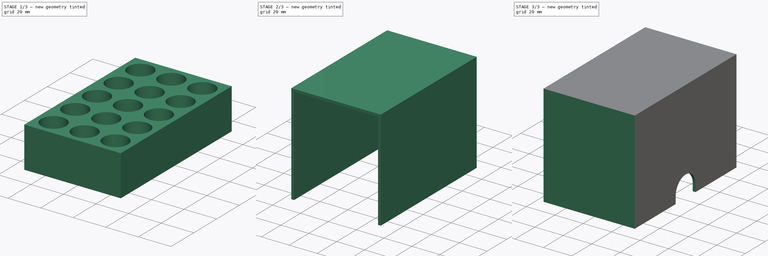
[diagram: build sequence overview — one tinted view per stage of 3, left to right]
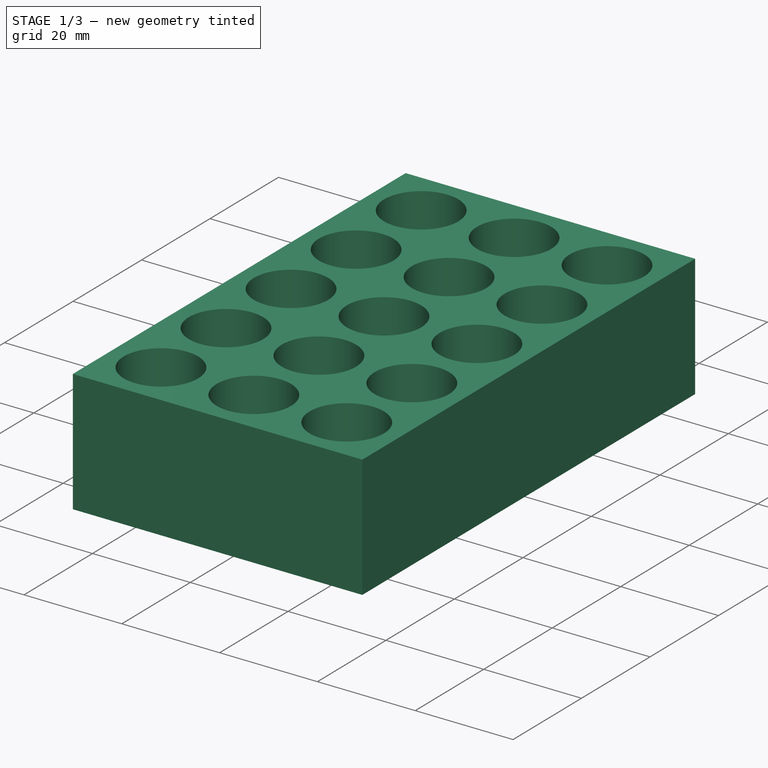
[diagram: stage 1 of 3 — iso view after this stage's code; geometry added in this stage tinted green]
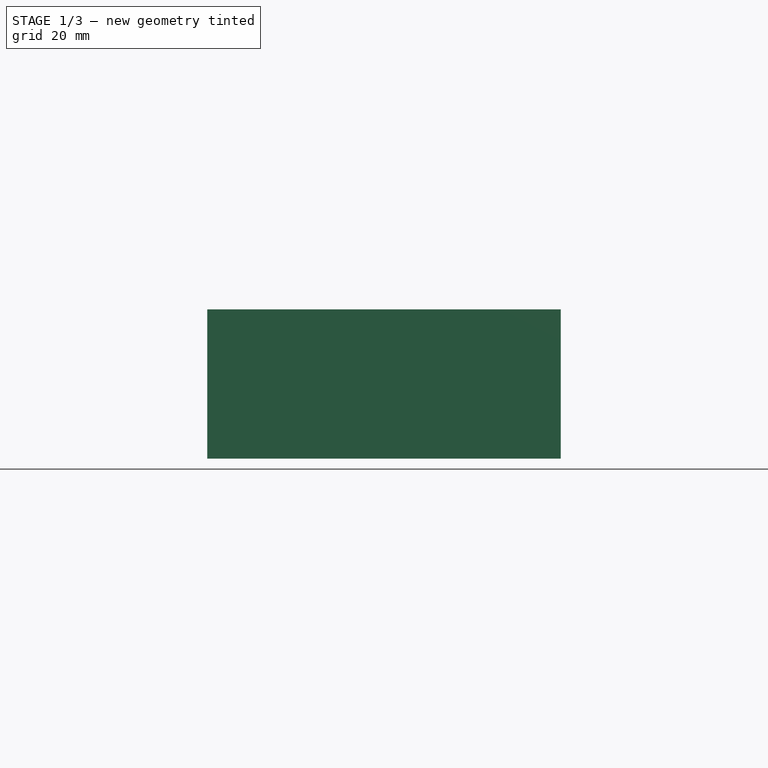
[diagram: stage 1 of 3 — front view after this stage's code; geometry added in this stage tinted green]
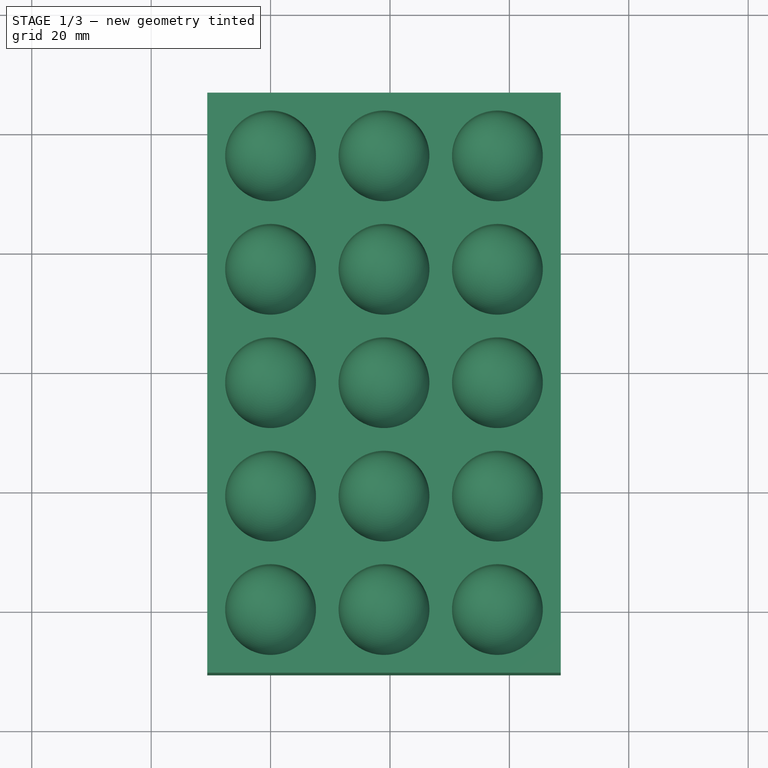
[diagram: stage 1 of 3 — top view after this stage's code; geometry added in this stage tinted green]
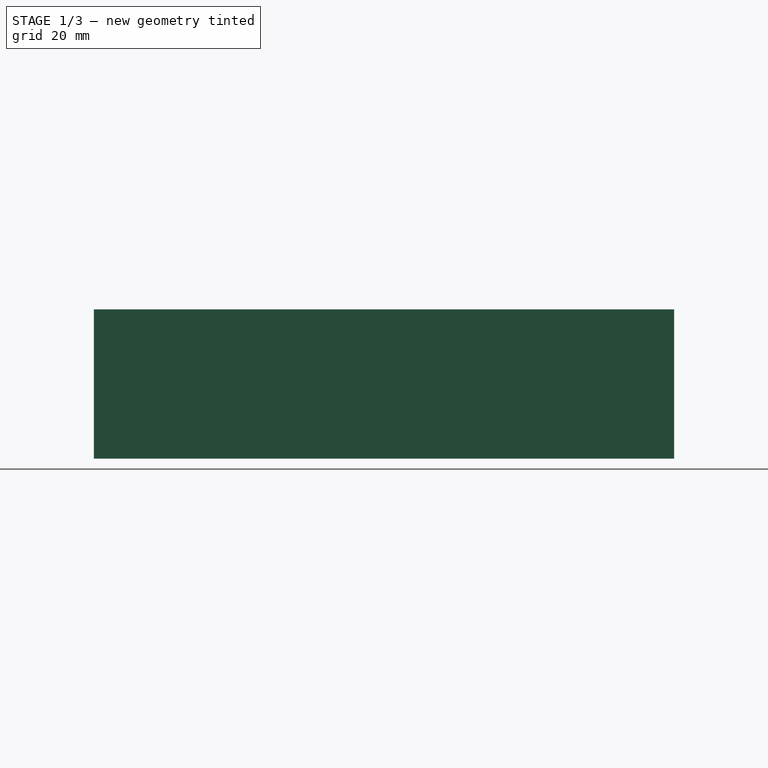
[diagram: stage 1 of 3 — right view after this stage's code; geometry added in this stage tinted green]
FCSTD DOCUMENT  (FreeCAD 1.1R41446 (Git))
Label: старая каёбка
License: All rights reserved
LicenseURL: https://en.wikipedia.org/wiki/All_rights_reserved
objects: Sketcher::SketchObject×7, PartDesign::Pad×5, App::Point×2, PartDesign::LinearPattern×2, PartDesign::Body×2, PartDesign::Revolution×1, PartDesign::MultiTransform×1, PartDesign::SubShapeBinder×1, PartDesign::Pocket×1
note: 44 computed .brp shape members not serialized (recipe doc carries the construction recipe); baked Part::Feature solids carry a one-line shape summary decoded from their .brp

FEATURE [App::Point] Origin001  label="Начало координат"
  Role = Origin
FEATURE [Sketcher::SketchObject] Sketch
  ArcFitTolerance = 1e-06
  AttachmentSupport = -> [Origin]
  ExternalTypes = [0]
  FullyConstrained = true
  MakeInternals = false
  MapMode = 5
  Placement = pos=(0,0,0) rot=(1,0,0;1.5708rad)
  sketch-geometry (12):
    g0: LineSegment StartX=-10.6 StartY=0 StartZ=0 EndX=-10.6 EndY=25 EndZ=0
    g1: LineSegment StartX=-10.6 StartY=25 StartZ=0 EndX=-7.6 EndY=25 EndZ=0
    g2: LineSegment StartX=-7.6 StartY=25 StartZ=0 EndX=-7.6 EndY=10.6 EndZ=0
    g3: LineSegment [constr] StartX=7.6 StartY=10.6 StartZ=0 EndX=7.6 EndY=25 EndZ=0
    g4: LineSegment [constr] StartX=7.6 StartY=25 StartZ=0 EndX=10.6 EndY=25 EndZ=0
    g5: LineSegment [constr] StartX=10.6 StartY=25 StartZ=0 EndX=10.6 EndY=0 EndZ=0
    g6: LineSegment [constr] StartX=7.6 StartY=10.6 StartZ=0 EndX=-7.6 EndY=10.6 EndZ=0
    g7: LineSegment StartX=-10.6 StartY=0 StartZ=0 EndX=0 EndY=0 EndZ=0
    g8: LineSegment [constr] StartX=0 StartY=0 StartZ=0 EndX=10.6 EndY=0 EndZ=0
    g9: ArcOfCircle CenterX=-1e-16 CenterY=10.6 CenterZ=0 NormalX=0 NormalY=0 NormalZ=1 AngleXU=0 Radius=7.6 StartAngle=3.14159 EndAngle=4.71239
    g10: ArcOfCircle [constr] CenterX=-1e-16 CenterY=10.6 CenterZ=0 NormalX=0 NormalY=0 NormalZ=1 AngleXU=0 Radius=7.6 StartAngle=4.71239 EndAngle=6.28319
    g11: LineSegment StartX=0 StartY=0 StartZ=0 EndX=5.2e-15 EndY=3 EndZ=0
  constraints (34):
    c: PointOnObject(g0,g-1)
    c: Coincident(g0,g1)
    c: Horizontal(g1)
    c: Coincident(g1,g2)
    c: Coincident(g3,g4)
    c: Coincident(g4,g5)
    c: Vertical(g5)
    c: Coincident(g6,g3)
    c: Coincident(g6,g2)
    c: Vertical(g0)
    c: Vertical(g2)
    c: Horizontal(g6)
    c: Vertical(g3)
    c: Horizontal(g4)
    c: Equal(g1,g4)
    c: Horizontal(g1,g3)
    c: DistanceX(g1,g3) = 15.2
    c: DistanceX(g1,g1) = 3
    c: Coincident(g0,g7)
    c: Coincident(g7,g8)
    c: Coincident(g8,g5)
    c: Equal(g8,g7)
    c: PointOnObject(g5,g-1)
    c: Coincident(g7,g-1)
    c: Coincident(g9,g2)
    c: PointOnObject(g9,g-2)
    c: Coincident(g10,g9)
    c: Coincident(g10,g9)
    c: Coincident(g10,g3)
    c: PointOnObject(g9,g6)
    c: DistanceY(g7,g9) = 3
    c: DistanceY(g9,g3) = 22
    c: Coincident(g11,g7)
    c: Coincident(g11,g9)
FEATURE [PartDesign::Revolution] Revolution
  Angle = 360
  Angle2 = 60
  Axis = (0,2e-16,1)
  Base = (0,0,0)
  Profile = -> Sketch
  ReferenceAxis = -> Sketch [V_Axis]
  Refine = true
  Suppressed = false
  Type = 0
FEATURE [Sketcher::SketchObject] Sketch001
  ArcFitTolerance = 1e-06
  AttachmentSupport = -> [Revolution]
  ExternalGeometry = -> [Revolution]
  ExternalTypes = [0]
  FullyConstrained = false
  MakeInternals = false
  MapMode = 5
  Placement = pos=(0,5.6e-15,25) rot=(0,0,1;0rad)
  sketch-geometry (8):
    g0: LineSegment StartX=10.6 StartY=10.6 StartZ=0 EndX=-10.6 EndY=10.6 EndZ=0
    g1: LineSegment StartX=-10.6 StartY=10.6 StartZ=0 EndX=-10.6 EndY=-10.6 EndZ=0
    g2: LineSegment StartX=-10.6 StartY=-10.6 StartZ=0 EndX=10.6 EndY=-10.6 EndZ=0
    g3: LineSegment StartX=10.6 StartY=-10.6 StartZ=0 EndX=10.6 EndY=10.6 EndZ=0
    g4: GeomPoint X=0 Y=10.6 Z=0
    g5: GeomPoint X=-10.6 Y=0 Z=0
    g6: GeomPoint X=-2e-16 Y=-10.6 Z=0
    g7: GeomPoint X=10.6 Y=1e-16 Z=0
  constraints (14):
    c: Coincident(g0,g1)
    c: Coincident(g1,g2)
    c: Coincident(g2,g3)
    c: Coincident(g3,g0)
    c: Horizontal(g0)
    c: Horizontal(g2)
    c: Vertical(g1)
    c: Vertical(g3)
    c: Symmetric(g2,g2,g6)
    c: Symmetric(g3,g3,g7)
    c: Symmetric(g0,g0,g4)
    c: Symmetric(g0,g1,g5)
    c: PointOnObject(g5,g-1)
    c: PointOnObject(g4,g-2)
FEATURE [PartDesign::Pad] Pad
  BaseFeature = -> Revolution
  Direction = (0,0,1)
  Length = 10
  Length2 = 10
  Profile = -> Sketch001
  ReferenceAxis = -> Sketch001 [N_Axis]
  Refine = true
  Suppressed = false
  Type = 3
  UpToFace = -> Revolution [Face5]
FEATURE [PartDesign::LinearPattern] LinearPattern
  Direction = -> X_Axis
  Length = 38
  Mode = 1
  Occurrences = 3
  Offset = 19
  Refine = true
  Suppressed = false
  TransformMode = 0
FEATURE [PartDesign::LinearPattern] LinearPattern001
  Direction = -> Y_Axis
  Length = 76
  Mode = 1
  Occurrences = 5
  Offset = 19
  Refine = true
  Suppressed = false
  TransformMode = 0
FEATURE [PartDesign::MultiTransform] MultiTransform
  BaseFeature = -> Pad
  Refine = true
  Suppressed = false
  TransformMode = 1
  Transformations = -> [LinearPattern,LinearPattern001]
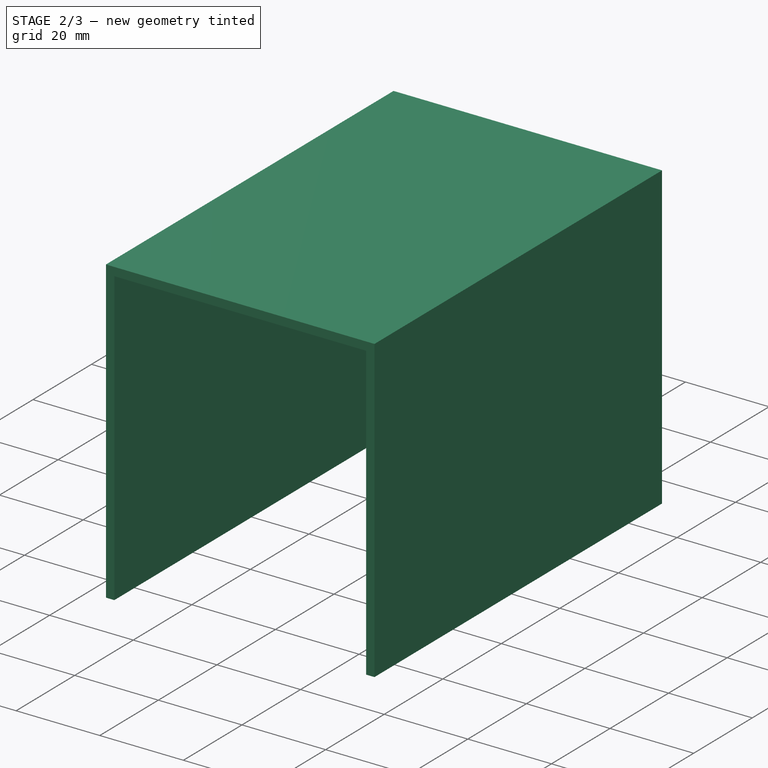
[diagram: stage 2 of 3 — iso view after this stage's code; geometry added in this stage tinted green]
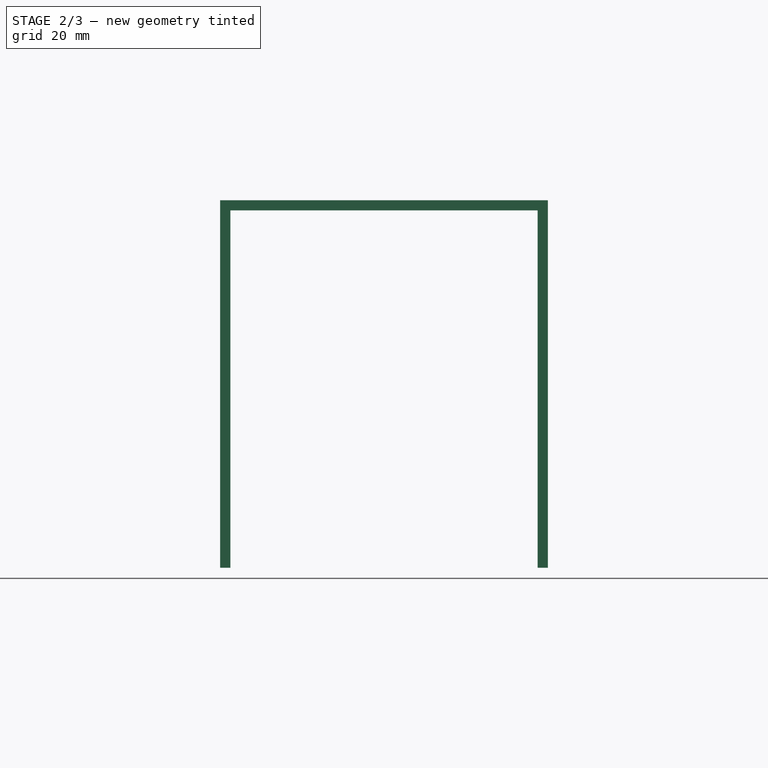
[diagram: stage 2 of 3 — front view after this stage's code; geometry added in this stage tinted green]
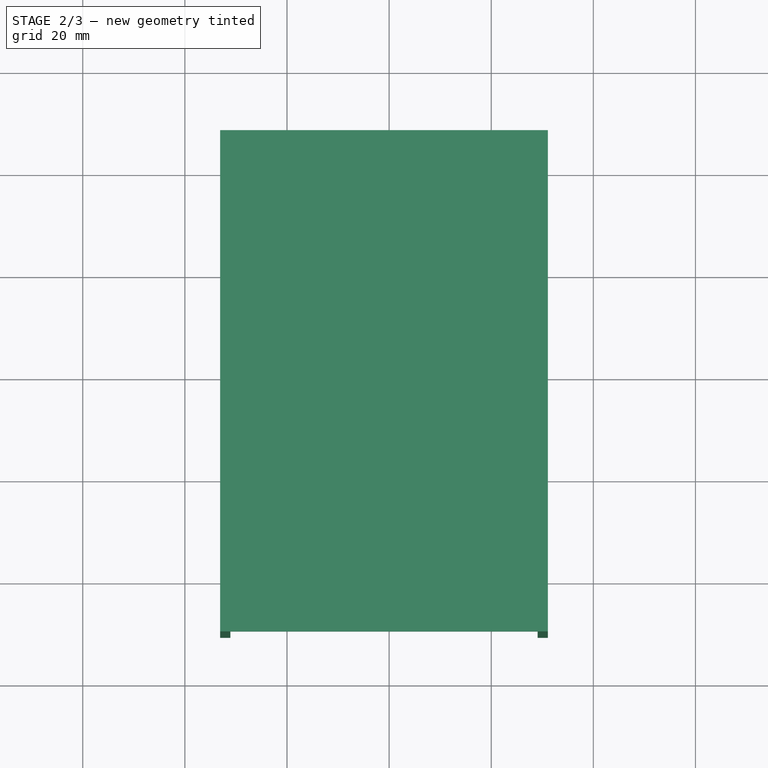
[diagram: stage 2 of 3 — top view after this stage's code; geometry added in this stage tinted green]
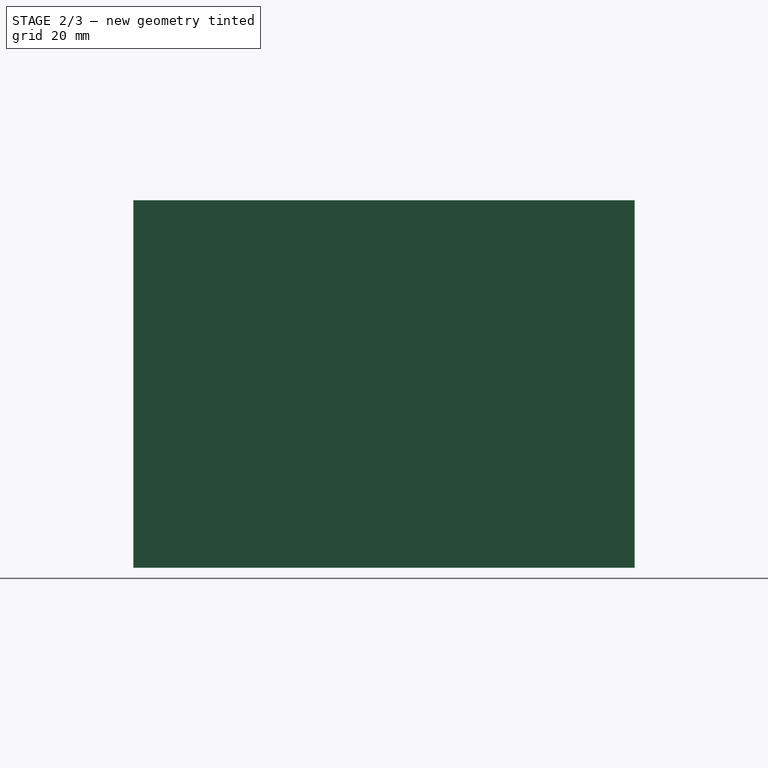
[diagram: stage 2 of 3 — right view after this stage's code; geometry added in this stage tinted green]
FEATURE [Sketcher::SketchObject] Sketch005
  ArcFitTolerance = 1e-06
  AttachmentSupport = -> [MultiTransform]
  ExternalGeometry = -> [MultiTransform]
  ExternalTypes = [0,0]
  FullyConstrained = true
  MakeInternals = false
  MapMode = 5
  Placement = pos=(0,-10.6,0) rot=(1,0,0;1.5708rad)
  sketch-geometry (4):
    g0: LineSegment StartX=-12.6 StartY=2 StartZ=0 EndX=-12.6 EndY=3.6e-15 EndZ=0
    g1: LineSegment StartX=-12.6 StartY=3.6e-15 StartZ=0 EndX=50.6 EndY=3.6e-15 EndZ=0
    g2: LineSegment StartX=50.6 StartY=3.6e-15 StartZ=0 EndX=50.6 EndY=2 EndZ=0
    g3: LineSegment StartX=50.6 StartY=2 StartZ=0 EndX=-12.6 EndY=2 EndZ=0
  constraints (12):
    c: Coincident(g0,g1)
    c: Coincident(g1,g2)
    c: Coincident(g2,g3)
    c: Horizontal(g3)
    c: Horizontal(g1)
    c: Vertical(g0)
    c: Coincident(g0,g3)
    c: Vertical(g2)
    c: DistanceY(g2,g2) = 2
    c: DistanceX(g-4,g2) = 2
    c: PointOnObject(g-4,g1)
    c: DistanceX(g0,g-3) = 2
FEATURE [PartDesign::Pad] Pad003
  BaseFeature = -> MultiTransform
  Direction = (0,-1,2e-16)
  Length = 2
  Length2 = 99.2
  Profile = -> Sketch005
  ReferenceAxis = -> Sketch005 [N_Axis]
  Refine = true
  Suppressed = false
  Type = 4
FEATURE [PartDesign::Body] Body  label="Тело"
  AllowCompound = false
  Group = -> [Sketch,Revolution,Sketch001,Pad,MultiTransform,LinearPattern,LinearPattern001,Sketch005,Pad003]
  Origin = -> Origin
  Tip = -> Pad003
FEATURE [App::Point] Origin003  label="Начало координат002"
  Role = Origin
FEATURE [PartDesign::SubShapeBinder] Binder
  BindCopyOnChange = 0
  BindMode = 0
  ClaimChildren = false
  Context = -> Body001 [Binder.]
  Fuse = false
  MakeFace = true
  OffsetFill = false
  OffsetIntersection = false
  OffsetJoinType = 0
  OffsetOpenResult = false
  PartialLoad = false
  Refine = true
  Relative = true
  Support = -> [Body[Pad003.Face22]]
  _Version = 2
FEATURE [Sketcher::SketchObject] Sketch006
  ArcFitTolerance = 1e-06
  AttachmentOffset = pos=(0,0,10.6) rot=(0,0,1;0rad)
  AttachmentSupport = -> [Origin002]
  ExternalGeometry = -> [Binder]
  ExternalTypes = [0,0,0]
  FullyConstrained = true
  MakeInternals = false
  MapMode = 5
  Placement = pos=(0,-10.6,2.4e-15) rot=(1,0,0;1.5708rad)
  sketch-geometry (8):
    g0: LineSegment StartX=-13.1 StartY=2 StartZ=0 EndX=-13.1 EndY=74 EndZ=0
    g1: LineSegment StartX=-11.1 StartY=72 StartZ=0 EndX=49.1 EndY=72 EndZ=0
    g2: LineSegment StartX=51.1 StartY=74 StartZ=0 EndX=51.1 EndY=2 EndZ=0
    g3: LineSegment StartX=49.1 StartY=2 StartZ=0 EndX=49.1 EndY=72 EndZ=0
    g4: LineSegment StartX=51.1 StartY=74 StartZ=0 EndX=-13.1 EndY=74 EndZ=0
    g5: LineSegment StartX=-11.1 StartY=72 StartZ=0 EndX=-11.1 EndY=2 EndZ=0
    g6: LineSegment StartX=-13.1 StartY=2 StartZ=0 EndX=-11.1 EndY=2 EndZ=0
    g7: LineSegment StartX=49.1 StartY=2 StartZ=0 EndX=51.1 EndY=2 EndZ=0
  constraints (24):
    c: Horizontal(g1)
    c: Horizontal(g4)
    c: DistanceY(g5,g5) = 70
    c: Vertical(g0)
    c: Vertical(g5)
    c: Vertical(g3)
    c: Vertical(g2)
    c: Distance(g4,g1) = 2
    c: Coincident(g4,g0)
    c: Coincident(g1,g5)
    c: Coincident(g2,g4)
    c: Coincident(g1,g3)
    c: Coincident(g6,g0)
    c: Coincident(g6,g5)
    c: Horizontal(g6)
    c: Distance(g-4,g5) = 0.5
    c: DistanceX(g6,g6) = 2
    c: PointOnObject(g-3,g6)
    c: Coincident(g7,g3)
    c: Coincident(g7,g2)
    c: DistanceX(g7,g7) = 2
    c: Horizontal(g7)
    c: PointOnObject(g-3,g7)
    c: DistanceX(g-5,g3) = 0.5
FEATURE [PartDesign::Pad] Pad004
  Direction = (0,-1,2e-16)
  Length = 10
  Length2 = 10
  Offset = 1
  Profile = -> Sketch006
  ReferenceAxis = -> Sketch006 [N_Axis]
  Refine = true
  Suppressed = false
  Type = 3
  UpToFace = -> Pad003 [Face6]
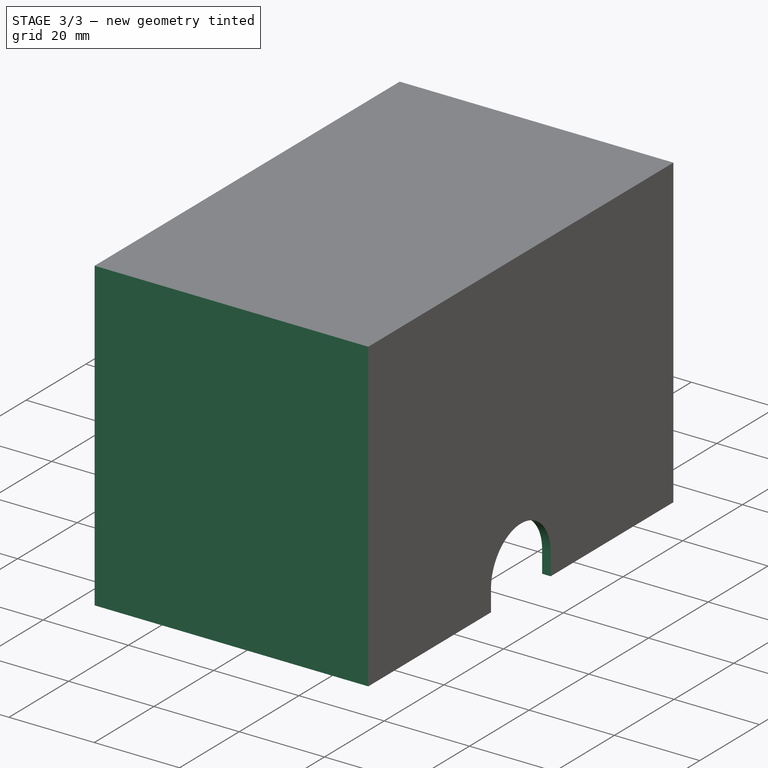
[diagram: stage 3 of 3 — iso view after this stage's code; geometry added in this stage tinted green]
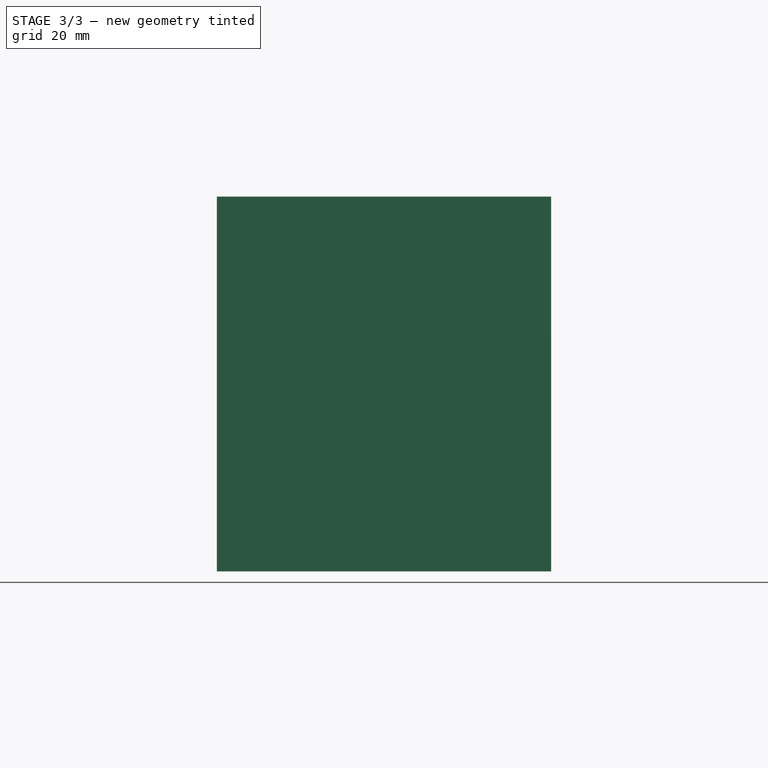
[diagram: stage 3 of 3 — front view after this stage's code; geometry added in this stage tinted green]
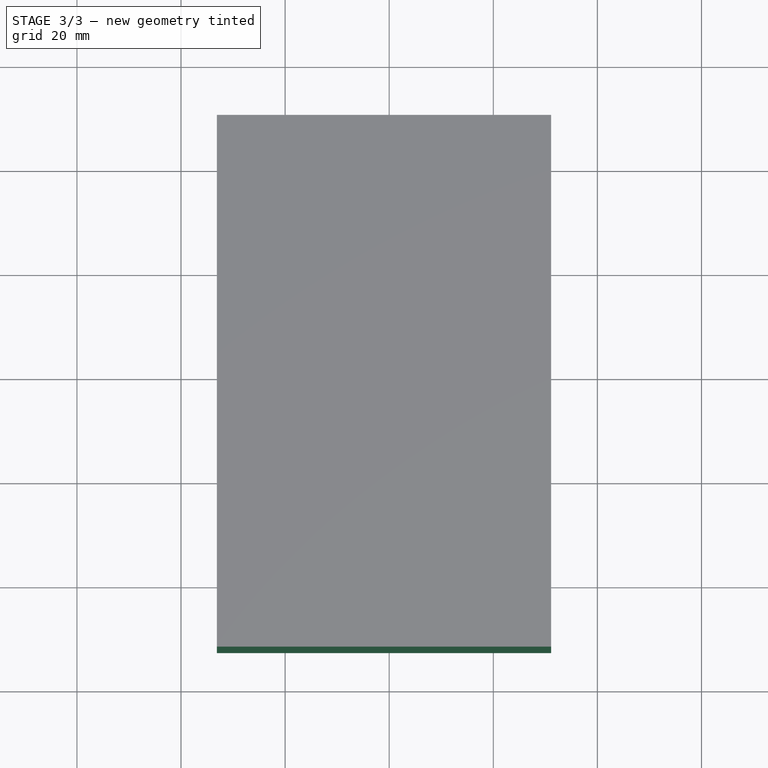
[diagram: stage 3 of 3 — top view after this stage's code; geometry added in this stage tinted green]
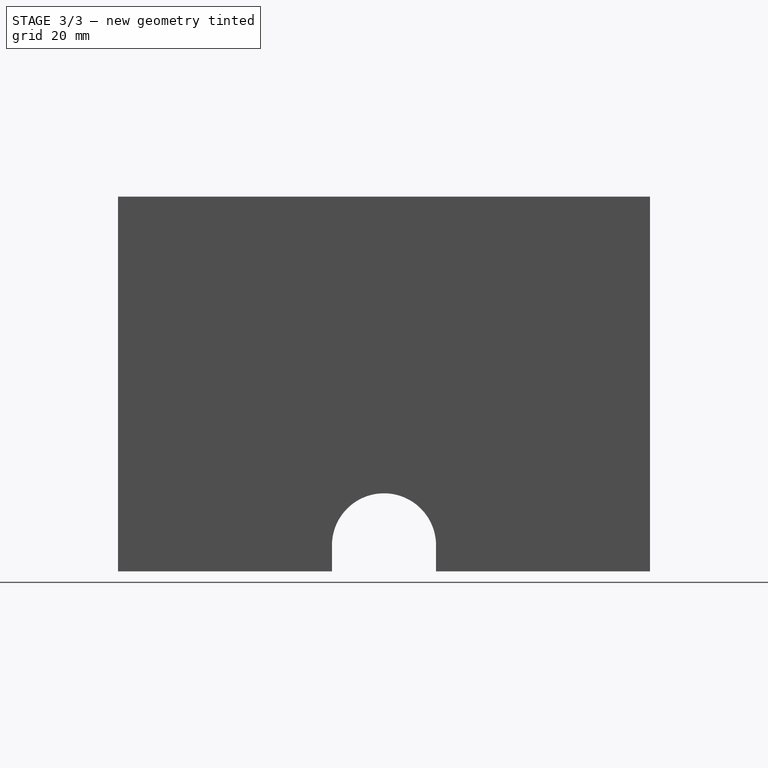
[diagram: stage 3 of 3 — right view after this stage's code; geometry added in this stage tinted green]
FEATURE [Sketcher::SketchObject] Sketch007
  ArcFitTolerance = 1e-06
  AttachmentSupport = -> [Pad004]
  ExternalGeometry = -> [Pad004]
  ExternalTypes = [0,0,0]
  FullyConstrained = true
  MakeInternals = false
  MapMode = 5
  Placement = pos=(0,87.6,0) rot=(0,0.707107,0.707107;3.14159rad)
  sketch-geometry (4):
    g0: LineSegment StartX=13.1 StartY=74 StartZ=0 EndX=-51.1 EndY=74 EndZ=0
    g1: LineSegment StartX=-51.1 StartY=74 StartZ=0 EndX=-51.1 EndY=2 EndZ=0
    g2: LineSegment StartX=-51.1 StartY=2 StartZ=0 EndX=13.1 EndY=2 EndZ=0
    g3: LineSegment StartX=13.1 StartY=2 StartZ=0 EndX=13.1 EndY=74 EndZ=0
  constraints (10):
    c: Coincident(g0,g1)
    c: Coincident(g1,g2)
    c: Coincident(g2,g3)
    c: Coincident(g3,g0)
    c: Horizontal(g0)
    c: Horizontal(g2)
    c: Vertical(g1)
    c: Vertical(g3)
    c: Coincident(g0,g-3)
    c: Coincident(g1,g-4)
FEATURE [PartDesign::Pad] Pad005
  BaseFeature = -> Pad004
  Direction = (0,1,-2e-16)
  Length = 2
  Length2 = 10
  Profile = -> Sketch007
  ReferenceAxis = -> Sketch007 [N_Axis]
  Refine = true
  Suppressed = false
  Type = 0
FEATURE [Sketcher::SketchObject] Sketch008
  ArcFitTolerance = 1e-06
  AttachmentSupport = -> [Pad005]
  ExternalGeometry = -> [Pad005]
  ExternalTypes = [0,0]
  FullyConstrained = true
  MakeInternals = false
  MapMode = 5
  Placement = pos=(0,-10.6,2.4e-15) rot=(1,0,0;1.5708rad)
  sketch-geometry (4):
    g0: LineSegment StartX=51.1 StartY=74 StartZ=0 EndX=-13.1 EndY=74 EndZ=0
    g1: LineSegment StartX=-13.1 StartY=74 StartZ=0 EndX=-13.1 EndY=2 EndZ=0
    g2: LineSegment StartX=-13.1 StartY=2 StartZ=0 EndX=51.1 EndY=2 EndZ=0
    g3: LineSegment StartX=51.1 StartY=2 StartZ=0 EndX=51.1 EndY=74 EndZ=0
  constraints (10):
    c: Coincident(g0,g1)
    c: Coincident(g1,g2)
    c: Coincident(g2,g3)
    c: Coincident(g3,g0)
    c: Horizontal(g0)
    c: Horizontal(g2)
    c: Vertical(g1)
    c: Vertical(g3)
    c: Coincident(g0,g-4)
    c: Coincident(g1,g-3)
FEATURE [PartDesign::Pad] Pad006
  BaseFeature = -> Pad005
  Direction = (0,-1,2e-16)
  Length = 2
  Length2 = 10
  Profile = -> Sketch008
  ReferenceAxis = -> Sketch008 [N_Axis]
  Refine = true
  Suppressed = false
  Type = 0
FEATURE [Sketcher::SketchObject] Sketch009
  ArcFitTolerance = 1e-06
  AttachmentSupport = -> [Pad006]
  ExternalGeometry = -> [Pad006]
  ExternalTypes = [0]
  FullyConstrained = true
  MakeInternals = false
  MapMode = 5
  Placement = pos=(-13.1,0,0) rot=(0.57735,-0.57735,-0.57735;2.0944rad)
  sketch-geometry (6):
    g0: LineSegment StartX=-48.5 StartY=2 StartZ=0 EndX=-48.5 EndY=7 EndZ=0
    g1: LineSegment StartX=-28.5 StartY=7 StartZ=0 EndX=-28.5 EndY=2 EndZ=0
    g2: LineSegment StartX=-48.5 StartY=2 StartZ=0 EndX=-28.5 EndY=2 EndZ=0
    g3: ArcOfCircle CenterX=-38.5 CenterY=7 CenterZ=0 NormalX=0 NormalY=0 NormalZ=1 AngleXU=0 Radius=10 StartAngle=0 EndAngle=3.14159
    g4: GeomPoint X=-38.5 Y=2 Z=0
    g5: GeomPoint [constr] X=-38.5 Y=17 Z=0
  constraints (15):
    c: PointOnObject(g0,g-3)
    c: Coincident(g0,g2)
    c: Coincident(g2,g1)
    c: Coincident(g3,g0)
    c: Coincident(g3,g1)
    c: Horizontal(g1,g3)
    c: Horizontal(g3,g0)
    c: Vertical(g1)
    c: Vertical(g0)
    c: Symmetric(g1,g0,g4)
    c: Symmetric(g-3,g-3,g4)
    c: Radius(g3) = 10
    c: DistanceY(g1,g1) = 5
    c: PointOnObject(g5,g3)
    c: Vertical(g3,g5)
FEATURE [PartDesign::Pocket] Pocket
  BaseFeature = -> Pad006
  Direction = (1,0,0)
  Length = 5
  Length2 = 5
  Profile = -> Sketch009
  ReferenceAxis = -> Sketch009 [N_Axis]
  Refine = true
  Suppressed = false
  Type = 1
FEATURE [PartDesign::Body] Body001  label="Тело001"
  AllowCompound = false
  Group = -> [Binder,Sketch006,Pad004,Sketch007,Pad005,Sketch008,Pad006,Sketch009,Pocket]
  Origin = -> Origin002
  Tip = -> Pocket
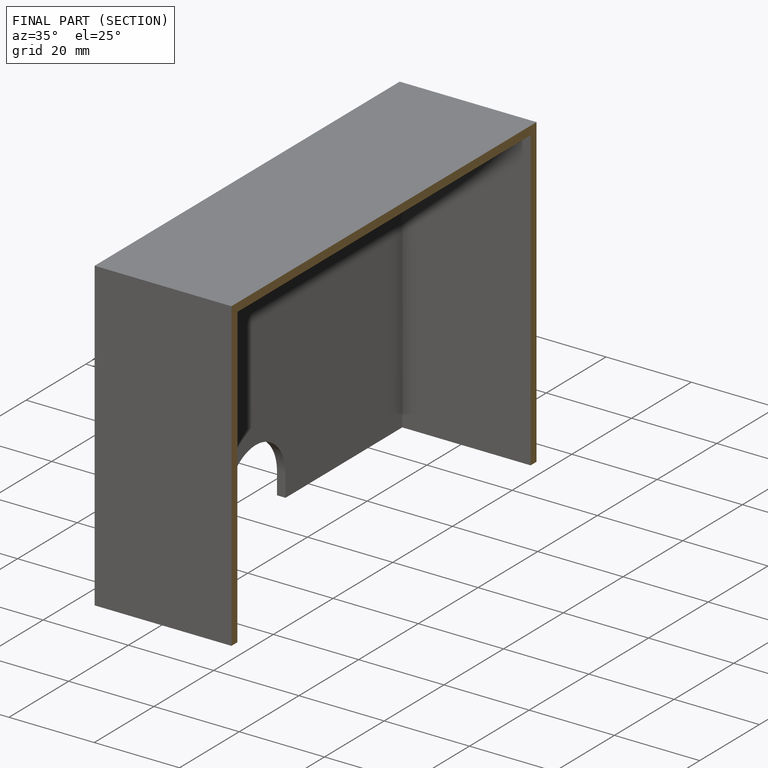
[diagram: finished part — half-section view (interior)]
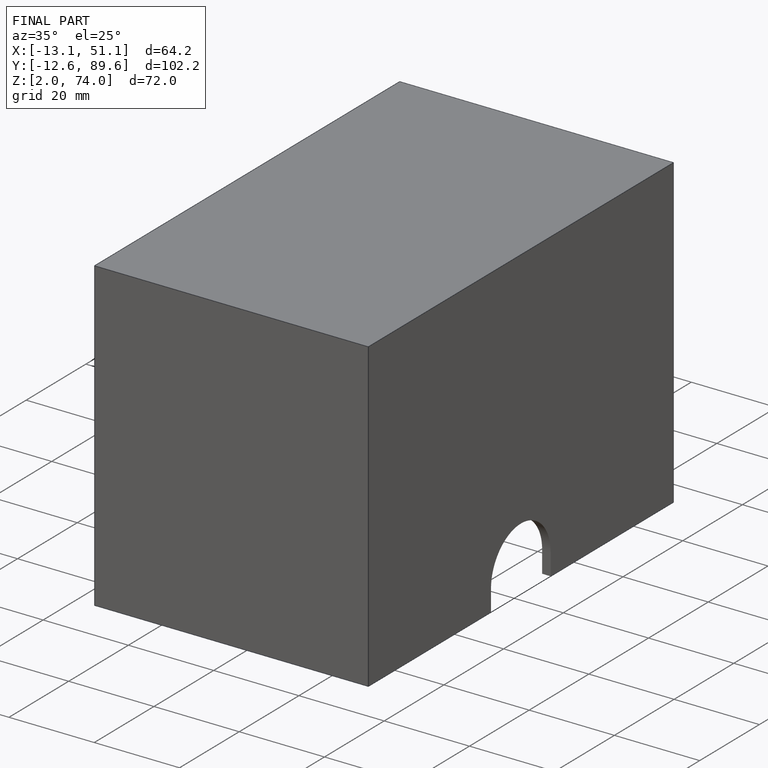
[diagram: finished part — iso view with bounding-box wireframe]
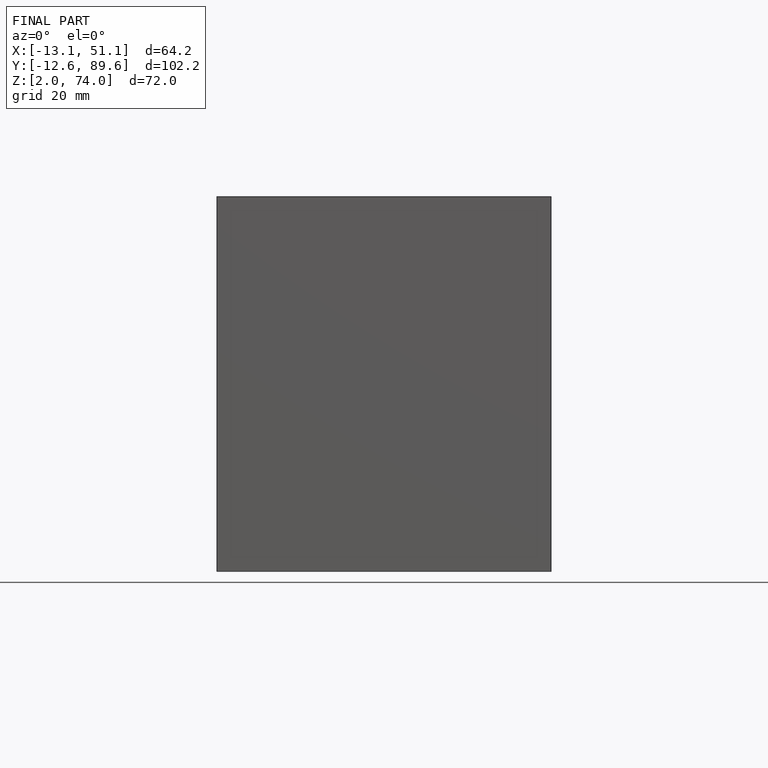
[diagram: finished part — front view with bounding-box wireframe]
